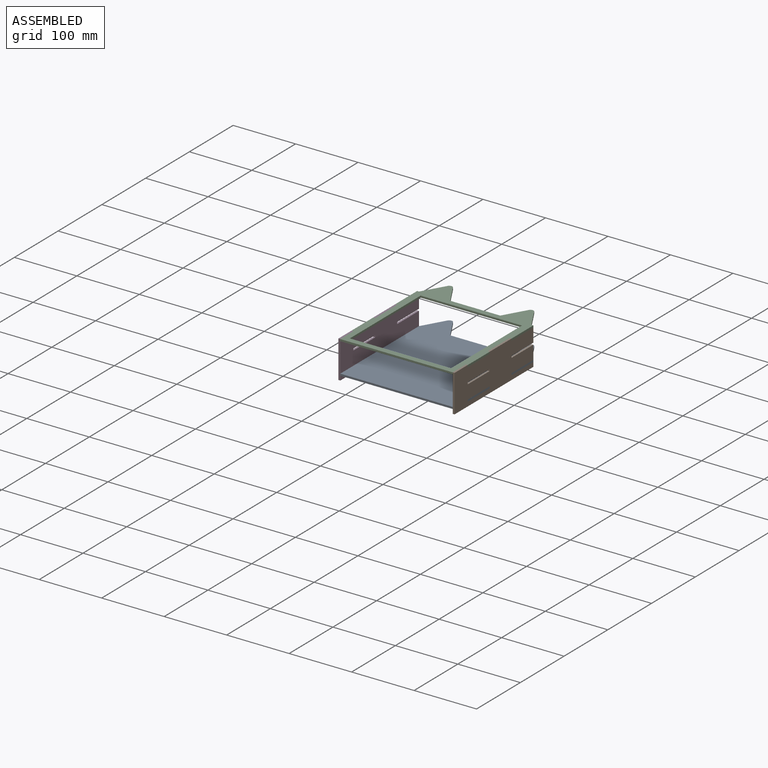
[diagram: assembled view]
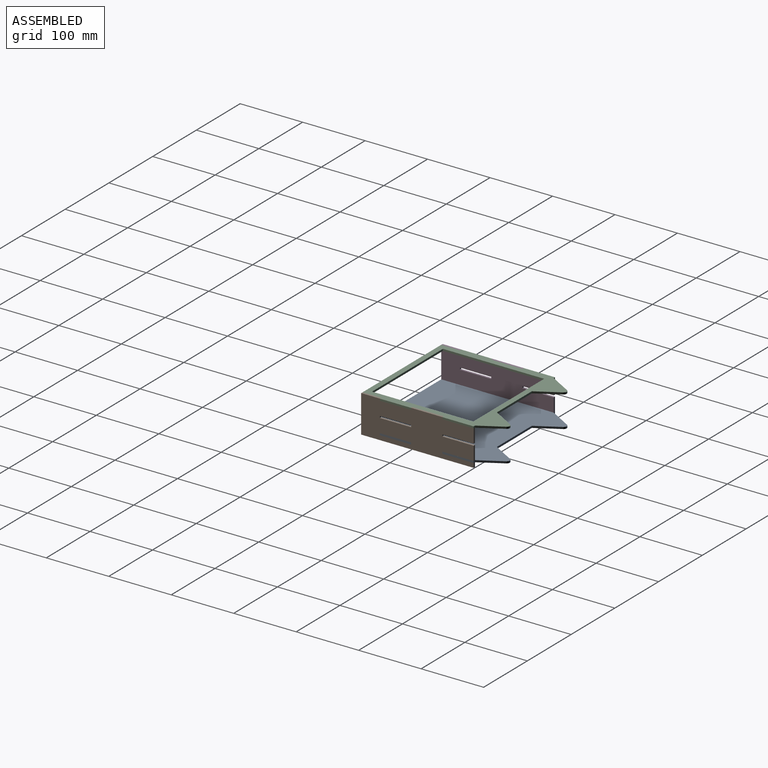
[diagram: assembled view, second angle]
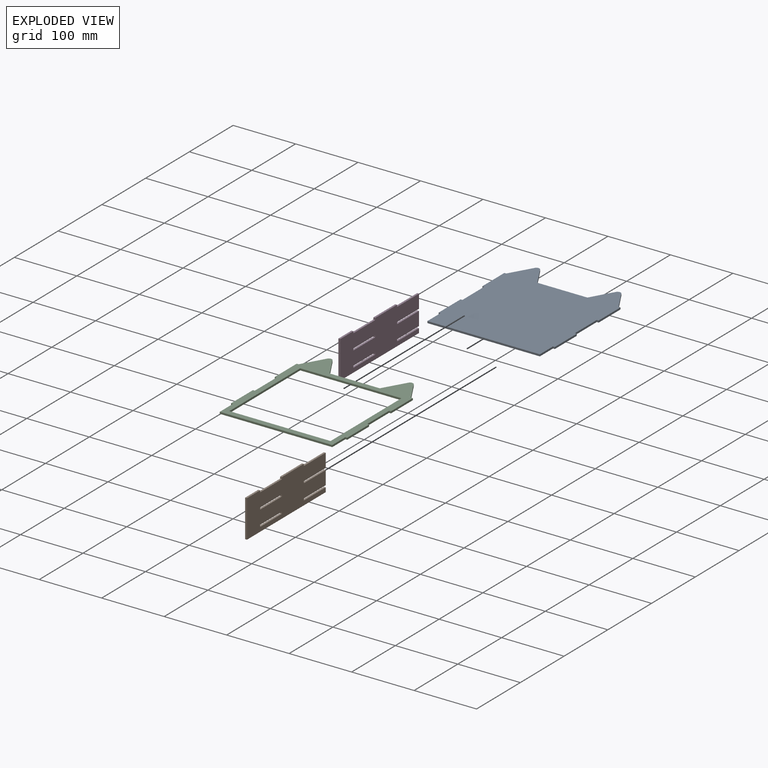
[diagram: exploded view]
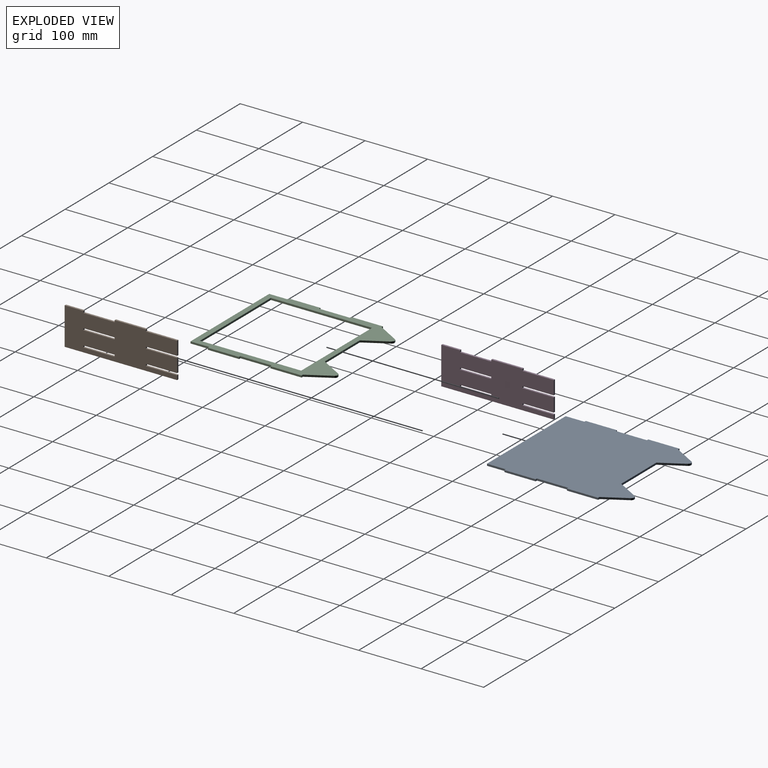
[diagram: exploded view, second angle]
ASSEMBLY  parts=4 mates=3
PART A: 26 faces, bbox 186x218.3x3 mm
  f0: plane 50x3mm, normal (1,0,0), area 150mm2, adj f10,f11,f20,f23
  f1: plane 30x3mm, normal (1,0,0), area 90mm2, adj f4,f10,f11,f21
  f2: plane 30x3mm, normal (-1,0,0), area 90mm2, adj f4,f10,f11,f19
  f3: plane 50x3mm, normal (-1,0,0), area 150mm2, adj f10,f11,f16,f17
  f4: plane 180x3mm, normal (0,-1,0), area 540mm2, adj f1,f2,f10,f11
  f5: plane 35.8x20.67mm, normal (0.87,0.5,0), area 124mm2, adj f10,f11,f12,f25
  f6: plane 35.8x20.67mm, normal (-0.87,0.5,0), area 124mm2, adj f7,f10,f11,f12
  f7: plane 80x3mm, normal (0,1,0), area 240mm2, adj f6,f8,f10,f11
  f8: plane 35.8x20.67mm, normal (0.87,0.5,0), area 124mm2, adj f7,f10,f11,f13
  f9: plane 35.8x20.67mm, normal (-0.87,0.5,0), area 124mm2, adj f10,f11,f13,f14
  f10: plane 218.3x186mm, normal (0,0,1), area 35130.8mm2, adj f0,f1,f2,f3,f4,f5,f6,f7
  f11: plane 218.3x186mm, normal (0,0,-1), area 35130.8mm2, adj f0,f1,f2,f3,f4,f5,f6,f7
  f12: cylinder r=5mm len=8.66mm, axis (0,0,-1), area 31.4mm2, adj f5,f6,f10,f11
  f13: cylinder r=5mm len=8.66mm, axis (0,0,-1), area 31.4mm2, adj f8,f9,f10,f11
  f14: plane 3x3mm, normal (0,1,0), area 9mm2, adj f9,f10,f11,f15
  f15: plane 50x3mm, normal (-1,0,0), area 150mm2, adj f10,f11,f14,f16
  f16: plane 3x3mm, normal (0,-1,0), area 9mm2, adj f3,f10,f11,f15
  f17: plane 3x3mm, normal (0,1,0), area 9mm2, adj f3,f10,f11,f18
  f18: plane 50x3mm, normal (-1,0,0), area 150mm2, adj f10,f11,f17,f19
  f19: plane 3x3mm, normal (0,-1,0), area 9mm2, adj f2,f10,f11,f18
  f20: plane 3x3mm, normal (0,1,0), area 9mm2, adj f0,f10,f11,f22
  f21: plane 3x3mm, normal (0,-1,0), area 9mm2, adj f1,f10,f11,f22
  f22: plane 50x3mm, normal (1,0,0), area 150mm2, adj f10,f11,f20,f21
  f23: plane 3x3mm, normal (0,-1,0), area 9mm2, adj f0,f10,f11,f24
  f24: plane 50x3mm, normal (1,0,0), area 150mm2, adj f10,f11,f23,f25
  f25: plane 3x3mm, normal (0,1,0), area 9mm2, adj f5,f10,f11,f24
PART B: 28 faces, bbox 60x180x3 mm
  f0: plane 50x3mm, normal (1,0,0), area 150mm2, adj f3,f4,f9,f15
  f1: plane 22x3mm, normal (0,1,0), area 66mm2, adj f3,f4,f19,f25
  f2: plane 22x3mm, normal (0,1,0), area 66mm2, adj f3,f4,f10,f18
  f3: plane 180x60mm, normal (0,0,1), area 9900mm2, adj f0,f1,f2,f5,f6,f7,f8,f9
  f4: plane 180x60mm, normal (0,0,-1), area 9900mm2, adj f0,f1,f2,f5,f6,f7,f8,f9
  f5: plane 180x3mm, normal (-1,0,0), area 540mm2, adj f3,f4,f6,f8
  f6: plane 60x3mm, normal (0,-1,0), area 180mm2, adj f3,f4,f5,f7
  f7: plane 30x3mm, normal (1,0,0), area 90mm2, adj f3,f4,f6,f17
  f8: plane 7x3mm, normal (0,1,0), area 21mm2, adj f3,f4,f5,f26
  f9: plane 3x3mm, normal (0,1,0), area 9mm2, adj f0,f3,f4,f10
  f10: plane 50x3mm, normal (1,0,0), area 150mm2, adj f2,f3,f4,f9
  f11: plane 3x3mm, normal (0,1,0), area 9mm2, adj f3,f4,f12,f14
  f12: plane 50x3mm, normal (-1,0,0), area 150mm2, adj f3,f4,f11,f13
  f13: plane 3x3mm, normal (0,-1,0), area 9mm2, adj f3,f4,f12,f14
  f14: plane 50x3mm, normal (1,0,0), area 150mm2, adj f3,f4,f11,f13
  f15: plane 3x3mm, normal (0,-1,0), area 9mm2, adj f0,f3,f4,f16
  f16: plane 50x3mm, normal (1,0,0), area 150mm2, adj f3,f4,f15,f17
  f17: plane 3x3mm, normal (0,1,0), area 9mm2, adj f3,f4,f7,f16
  f18: plane 50x3mm, normal (-1,0,0), area 150mm2, adj f2,f3,f4,f20
  f19: plane 50x3mm, normal (1,0,0), area 150mm2, adj f1,f3,f4,f20
  f20: plane 3x3mm, normal (0,1,0), area 9mm2, adj f3,f4,f18,f19
  f21: plane 3x3mm, normal (0,1,0), area 9mm2, adj f3,f4,f22,f24
  f22: plane 50x3mm, normal (-1,0,0), area 150mm2, adj f3,f4,f21,f23
  f23: plane 3x3mm, normal (0,-1,0), area 9mm2, adj f3,f4,f22,f24
  f24: plane 50x3mm, normal (1,0,0), area 150mm2, adj f3,f4,f21,f23
  f25: plane 50x3mm, normal (-1,0,0), area 150mm2, adj f1,f3,f4,f27
  f26: plane 50x3mm, normal (1,0,0), area 150mm2, adj f3,f4,f8,f27
  f27: plane 3x3mm, normal (0,1,0), area 9mm2, adj f3,f4,f25,f26
PART C: 30 faces, bbox 186x218.3x3 mm
  f0: plane 30x3mm, normal (1,0,0), area 90mm2, adj f5,f14,f15,f28
  f1: plane 50x3mm, normal (1,0,0), area 150mm2, adj f14,f15,f24,f27
  f2: plane 30x3mm, normal (-1,0,0), area 90mm2, adj f5,f14,f15,f23
  f3: plane 50x3mm, normal (-1,0,0), area 150mm2, adj f14,f15,f20,f21
  f4: plane 35.8x20.67mm, normal (-0.87,0.5,0), area 124mm2, adj f14,f15,f17,f18
  f5: plane 180x3mm, normal (0,-1,0), area 540mm2, adj f0,f2,f14,f15
  f6: plane 35.8x20.67mm, normal (0.87,0.5,0), area 124mm2, adj f14,f15,f16,f26
  f7: plane 35.8x20.67mm, normal (-0.87,0.5,0), area 124mm2, adj f8,f14,f15,f16
  f8: plane 80x3mm, normal (0,1,0), area 240mm2, adj f7,f13,f14,f15
  f9: plane 162x3mm, normal (1,0,0), area 486mm2, adj f10,f12,f14,f15
  f10: plane 162x3mm, normal (0,-1,0), area 486mm2, adj f9,f11,f14,f15
  f11: plane 162x3mm, normal (-1,0,0), area 486mm2, adj f10,f12,f14,f15
  f12: plane 162x3mm, normal (0,1,0), area 486mm2, adj f9,f11,f14,f15
  f13: plane 35.8x20.67mm, normal (0.87,0.5,0), area 124mm2, adj f8,f14,f15,f17
  f14: plane 218.3x186mm, normal (0,0,1), area 8886.8mm2, adj f0,f1,f2,f3,f4,f5,f6,f7
  f15: plane 218.3x186mm, normal (0,0,-1), area 8886.8mm2, adj f0,f1,f2,f3,f4,f5,f6,f7
  f16: cylinder r=5mm len=8.66mm, axis (0,0,-1), area 31.4mm2, adj f6,f7,f14,f15
  f17: cylinder r=5mm len=8.66mm, axis (0,0,-1), area 31.4mm2, adj f4,f13,f14,f15
  f18: plane 3x3mm, normal (0,1,0), area 9mm2, adj f4,f14,f15,f19
  f19: plane 50x3mm, normal (-1,0,0), area 150mm2, adj f14,f15,f18,f20
  f20: plane 3x3mm, normal (0,-1,0), area 9mm2, adj f3,f14,f15,f19
  f21: plane 3x3mm, normal (0,1,0), area 9mm2, adj f3,f14,f15,f22
  f22: plane 50x3mm, normal (-1,0,0), area 150mm2, adj f14,f15,f21,f23
  f23: plane 3x3mm, normal (0,-1,0), area 9mm2, adj f2,f14,f15,f22
  f24: plane 3x3mm, normal (0,-1,0), area 9mm2, adj f1,f14,f15,f25
  f25: plane 50x3mm, normal (1,0,0), area 150mm2, adj f14,f15,f24,f26
  f26: plane 3x3mm, normal (0,1,0), area 9mm2, adj f6,f14,f15,f25
  f27: plane 3x3mm, normal (0,1,0), area 9mm2, adj f1,f14,f15,f29
  f28: plane 3x3mm, normal (0,-1,0), area 9mm2, adj f0,f14,f15,f29
  f29: plane 50x3mm, normal (1,0,0), area 150mm2, adj f14,f15,f27,f28
PART D: same geometry as B
PLACE A t=(-35.31,14.36,45.12)mm
PLACE B rot(axis=(0,-1,0),90deg) t=(57.69,14.36,68.12)mm
PLACE C t=(-35.31,14.36,95.12)mm
PLACE D rot(axis=(0,-1,0),90deg) t=(-125.31,14.36,68.12)mm
MATE fastened A.f16 <-> D.f27  axis (0,-1,0) through (-126.81,54.36,46.62)mm
MATE fastened C.f20 <-> D.f9  axis (0,-1,0) through (-126.81,54.36,96.62)mm
MATE fastened B.f27 <-> A.f23  axis (0,1,0) through (56.19,54.36,46.62)mm
